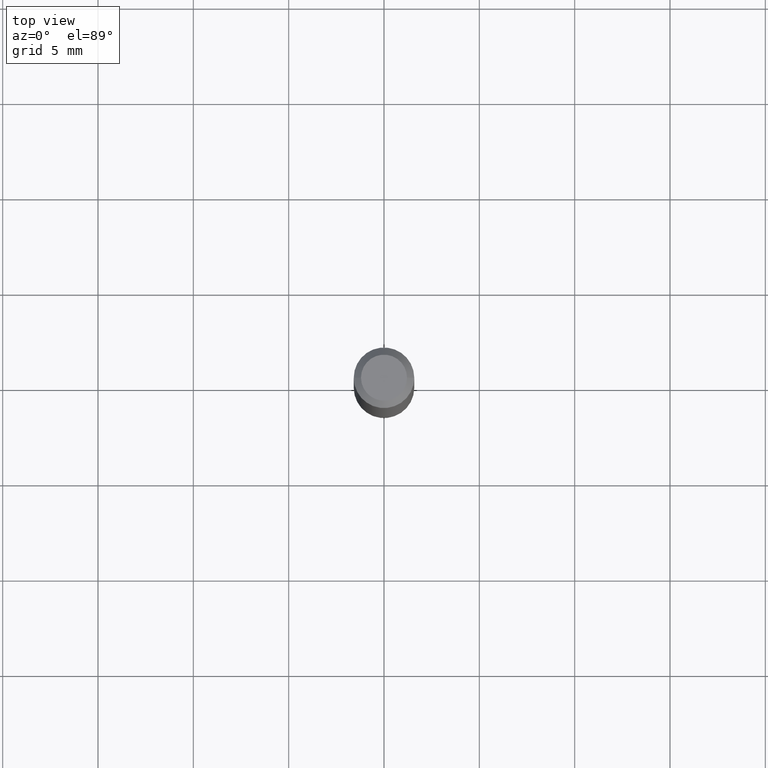
[diagram: clean part render]
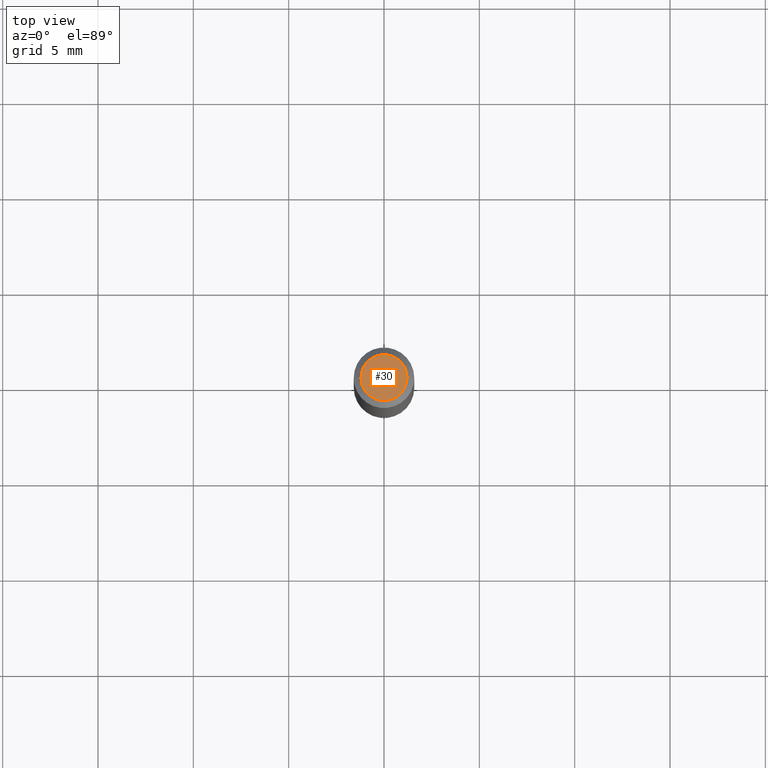
[diagram: same view with one face highlighted and labeled with its STEP entity id]
A machine part, top view. The second image highlights one B-rep face of the part: STEP entity #30.
In plain terms, the highlighted planar face has unit normal (0, -0, -1).
Its self-contained STEP definition (entity closure, byte-faithful):
#26 = CARTESIAN_POINT ( 'NONE',  ( -0.04750000000000000749, 3.578768372314221353E-16, 2.731847993664239060E-16 ) ) ;
#30 = ADVANCED_FACE ( 'NONE', ( #131 ), #44, .F. ) ;
#44 = PLANE ( 'NONE',  #118 ) ;
#75 = CIRCLE ( 'NONE', #240, 0.04750000000000000749 ) ;
#110 = DIRECTION ( 'NONE',  ( 1.000000000000000000, -6.982962677686266711E-15, 4.852736867747365086E-29 ) ) ;
#118 = AXIS2_PLACEMENT_3D ( 'NONE', #488, #451, #281 ) ;
#131 = FACE_OUTER_BOUND ( 'NONE', #161, .T. ) ;
#158 = ORIENTED_EDGE ( 'NONE', *, *, #202, .T. ) ;
#161 = EDGE_LOOP ( 'NONE', ( #158, #220 ) ) ;
#180 = CARTESIAN_POINT ( 'NONE',  ( -6.680649051745406845E-45, 9.538196290434862081E-31, 2.731847993664263218E-16 ) ) ;
#185 = EDGE_CURVE ( 'NONE', #194, #412, #75, .T. ) ;
#194 = VERTEX_POINT ( 'NONE', #466 ) ;
#202 = EDGE_CURVE ( 'NONE', #412, #194, #408, .T. ) ;
#220 = ORIENTED_EDGE ( 'NONE', *, *, #185, .T. ) ;
#240 = AXIS2_PLACEMENT_3D ( 'NONE', #180, #339, #504 ) ;
#256 = CARTESIAN_POINT ( 'NONE',  ( -6.680649051745406845E-45, 9.538196290434862081E-31, 2.731847993664263218E-16 ) ) ;
#281 = DIRECTION ( 'NONE',  ( -1.000000000000000000, 6.982962677686265922E-15, -4.876176775795935793E-29 ) ) ;
#307 = AXIS2_PLACEMENT_3D ( 'NONE', #256, #469, #110 ) ;
#339 = DIRECTION ( 'NONE',  ( -2.445468806185136597E-29, 3.491481338843145583E-15, 1.000000000000000000 ) ) ;
#408 = CIRCLE ( 'NONE', #307, 0.04750000000000000749 ) ;
#412 = VERTEX_POINT ( 'NONE', #26 ) ;
#451 = DIRECTION ( 'NONE',  ( 2.438088387897960049E-29, -3.491481338843145188E-15, -1.000000000000000000 ) ) ;
#466 = CARTESIAN_POINT ( 'NONE',  ( 0.04750000000000000749, -4.035134999187568762E-16, 2.731847993664288856E-16 ) ) ;
#469 = DIRECTION ( 'NONE',  ( -2.445468806185136597E-29, 3.491481338843145583E-15, 1.000000000000000000 ) ) ;
#488 = CARTESIAN_POINT ( 'NONE',  ( 3.316907271900976589E-16, 0.04750000000000000749, -2.925296391183627249E-17 ) ) ;
#504 = DIRECTION ( 'NONE',  ( 1.000000000000000000, -6.982962677686266711E-15, 4.852736867747365086E-29 ) ) ;